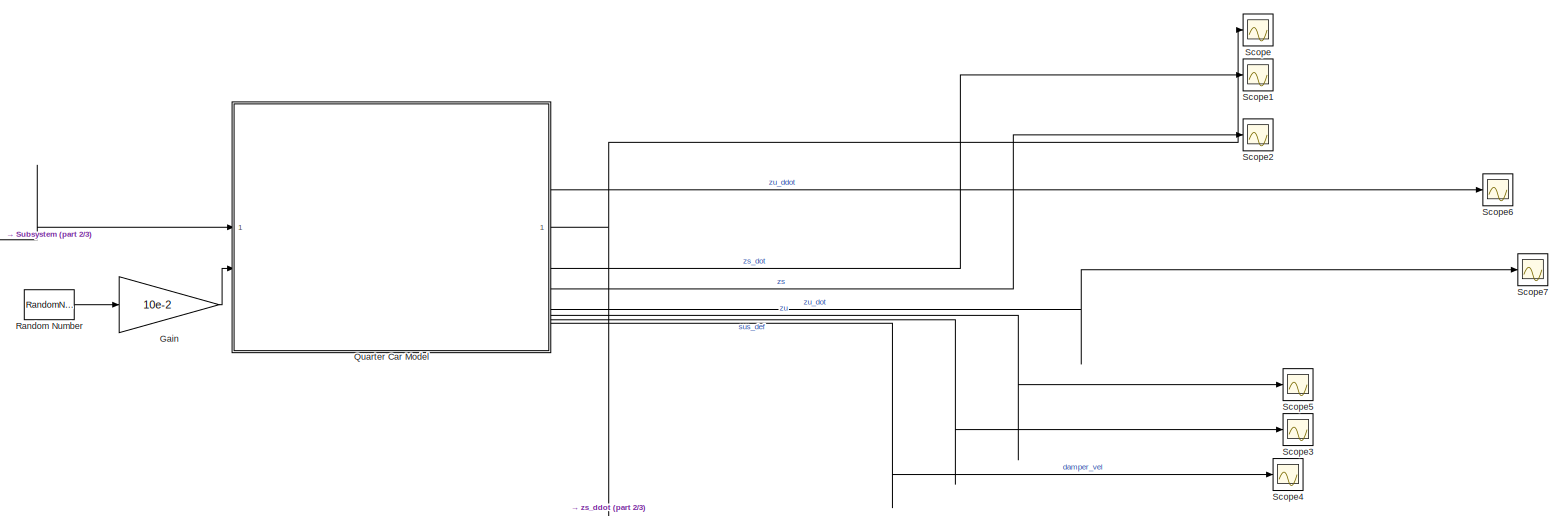
[diagram: root canvas - part 1/3, right side, full height]
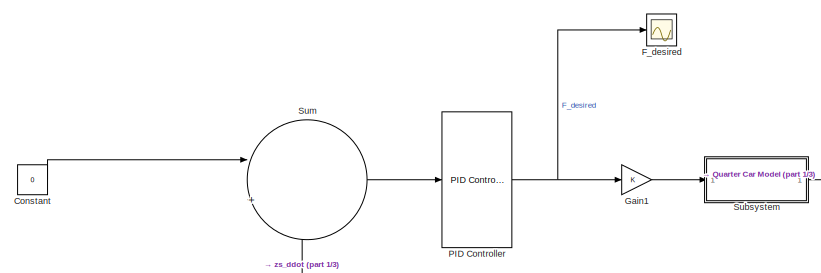
[diagram: root canvas - part 2/3, middle left region]
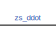
[diagram: root canvas - part 3/3, bottom center region]
MODEL slx_382a6aabd323
KIND model
CONFIG AbsTol = auto
CONFIG EnableMultiTasking = off
CONFIG FixedStep = auto
CONFIG MaxStep = auto
CONFIG MinStep = auto
CONFIG RelTol = 1e-3
CONFIG SampleTimeConstraint = Unconstrained
CONFIG SolverName = VariableStepAuto
CONFIG StartTime = 0.0
CONFIG StopTime = 1
BLOCK [Constant] Constant
  Value = 0
BLOCK [Scope] F_desired
  Floating = off
  NumInputPorts = 1
  ScopeSpecificationString = Simulink.scopes.TimeScopeBlockCfg('CurrentConfiguration', extmgr.ConfigurationSet(extmgr.Configuration('Core','General UI',true),extmgr.Configuration('Core','Source UI',true),extmgr.Configuration('Sources','WiredSimulink',true,'DataLoggingVariableName','ScopeData3'),extmgr.Configuration('Visuals','Time Domain',true,'SerializedDisplays',{struct('MinYLimReal','-10175.29855','MaxYLimReal','10168.7855...<+1455ch>
BLOCK [Gain] Gain
  Gain = 10e-2
BLOCK [Gain] Gain1
BLOCK [Reference] PID Controller  REF=slpidlib/PID Controller
  LibrarySourceBlock = simulink/Continuous/PID Controller
  SourceBlock = slpidlib/PID Controller
  SourceType = PID 1dof
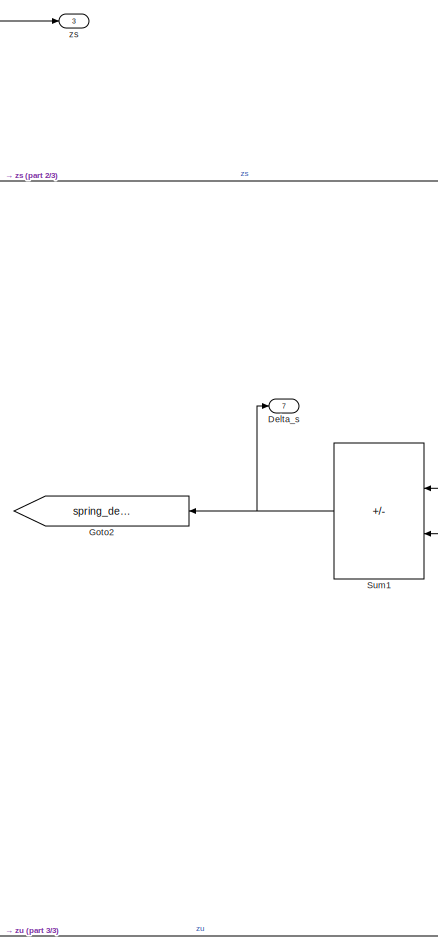
[diagram: Quarter Car Model - part 1/3, middle right region]
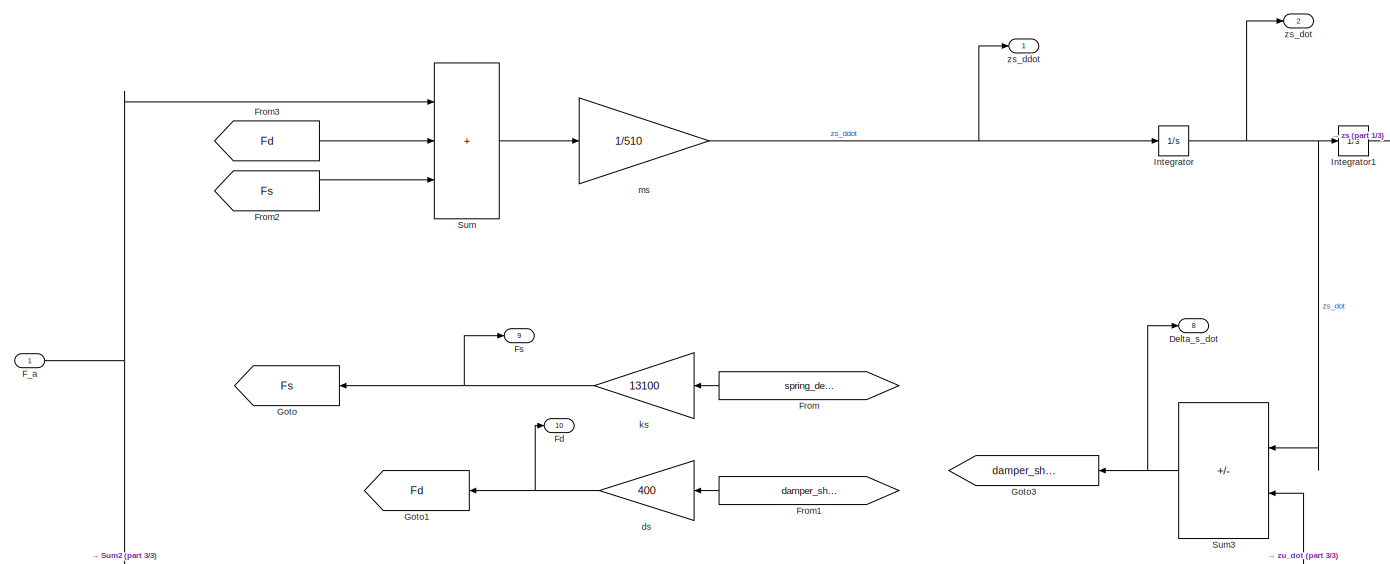
[diagram: Quarter Car Model - part 2/3, top center region]
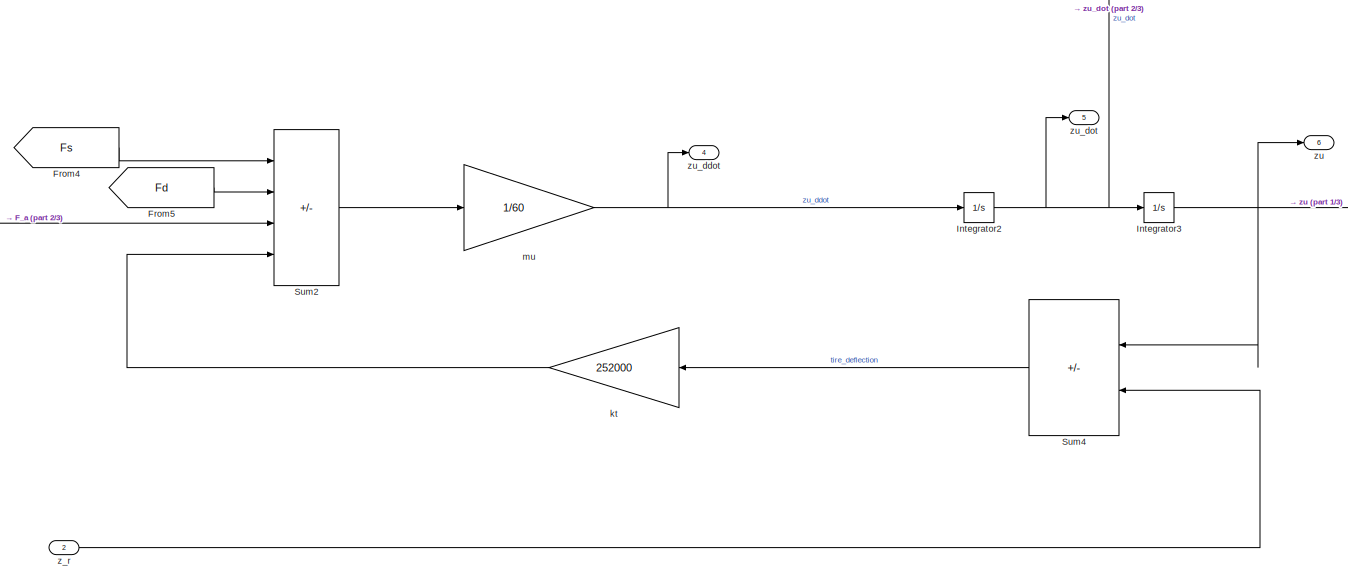
[diagram: Quarter Car Model - part 3/3, bottom center region]
BLOCK [SubSystem] Quarter Car Model
BLOCK [Outport] Quarter Car Model/Delta_s
  Port = 7
BLOCK [Outport] Quarter Car Model/Delta_s_dot
  Port = 8
BLOCK [Inport] Quarter Car Model/F_a
BLOCK [Outport] Quarter Car Model/Fd
  Port = 10
BLOCK [From] Quarter Car Model/From
  GotoTag = spring_deflection
  NameLocation = top
BLOCK [From] Quarter Car Model/From1
  GotoTag = damper_shaft_velocity
  NameLocation = top
BLOCK [From] Quarter Car Model/From2
  GotoTag = Fs
BLOCK [From] Quarter Car Model/From3
  GotoTag = Fd
  NameLocation = top
BLOCK [From] Quarter Car Model/From4
  GotoTag = Fs
BLOCK [From] Quarter Car Model/From5
  GotoTag = Fd
  NameLocation = top
BLOCK [Outport] Quarter Car Model/Fs
  Port = 9
BLOCK [Goto] Quarter Car Model/Goto
  GotoTag = Fs
  NameLocation = top
BLOCK [Goto] Quarter Car Model/Goto1
  GotoTag = Fd
  NameLocation = top
BLOCK [Goto] Quarter Car Model/Goto2
  GotoTag = spring_deflection
  NameLocation = top
BLOCK [Goto] Quarter Car Model/Goto3
  GotoTag = damper_shaft_velocity
  NameLocation = top
BLOCK [Integrator] Quarter Car Model/Integrator
BLOCK [Integrator] Quarter Car Model/Integrator1
BLOCK [Integrator] Quarter Car Model/Integrator2
BLOCK [Integrator] Quarter Car Model/Integrator3
BLOCK [Sum] Quarter Car Model/Sum
  IconShape = rectangular
  Inputs = +++
BLOCK [Sum] Quarter Car Model/Sum1
  IconShape = rectangular
  Inputs = |-+
  NameLocation = top
BLOCK [Sum] Quarter Car Model/Sum2
  IconShape = rectangular
  Inputs = ---+
BLOCK [Sum] Quarter Car Model/Sum3
  IconShape = rectangular
  Inputs = |-+
  NameLocation = top
BLOCK [Sum] Quarter Car Model/Sum4
  IconShape = rectangular
  Inputs = |-+
  NameLocation = top
BLOCK [Gain] Quarter Car Model/ds
  Gain = 400
  NameLocation = top
BLOCK [Gain] Quarter Car Model/ks
  Gain = 13100
  NameLocation = top
BLOCK [Gain] Quarter Car Model/kt
  Gain = 252000
  NameLocation = top
BLOCK [Gain] Quarter Car Model/ms
  Gain = 1/510
BLOCK [Gain] Quarter Car Model/mu
  Gain = 1/60
BLOCK [Inport] Quarter Car Model/z_r
  Port = 2
BLOCK [Outport] Quarter Car Model/zs
  Port = 3
BLOCK [Outport] Quarter Car Model/zs_ddot
BLOCK [Outport] Quarter Car Model/zs_dot
  Port = 2
BLOCK [Outport] Quarter Car Model/zu
  Port = 6
BLOCK [Outport] Quarter Car Model/zu_ddot
  Port = 4
BLOCK [Outport] Quarter Car Model/zu_dot
  Port = 5
BLOCK [RandomNumber] Random Number
  SampleTime = 0.01
BLOCK [Scope] Scope
  Floating = off
  NumInputPorts = 1
  ScopeSpecificationString = Simulink.scopes.TimeScopeBlockCfg('CurrentConfiguration', extmgr.ConfigurationSet(extmgr.Configuration('Core','General UI',true),extmgr.Configuration('Core','Source UI',true),extmgr.Configuration('Sources','WiredSimulink',true),extmgr.Configuration('Visuals','Time Domain',true,'SerializedDisplays',{struct('MinYLimReal','-0.43528','MaxYLimReal','0.44356','YLabelReal','','MinYLimMag','0.00000','MaxY...<+1385ch>
BLOCK [Scope] Scope1
  Floating = off
  NumInputPorts = 1
  ScopeSpecificationString = Simulink.scopes.TimeScopeBlockCfg('CurrentConfiguration', extmgr.ConfigurationSet(extmgr.Configuration('Core','General UI',true),extmgr.Configuration('Core','Source UI',true),extmgr.Configuration('Sources','WiredSimulink',true,'DataLoggingVariableName','ScopeData1'),extmgr.Configuration('Visuals','Time Domain',true,'SerializedDisplays',{struct('MinYLimReal','-0.0049','MaxYLimReal','0.01393','YLabe...<+1420ch>
BLOCK [Scope] Scope2
  Floating = off
  NumInputPorts = 1
  ScopeSpecificationString = Simulink.scopes.TimeScopeBlockCfg('CurrentConfiguration', extmgr.ConfigurationSet(extmgr.Configuration('Core','General UI',true),extmgr.Configuration('Core','Source UI',true),extmgr.Configuration('Sources','WiredSimulink',true,'DataLoggingVariableName','ScopeData2'),extmgr.Configuration('Visuals','Time Domain',true,'SerializedDisplays',{struct('MinYLimReal','-0.0006','MaxYLimReal','0.00537','YLabe...<+1359ch>
BLOCK [Scope] Scope3
  Floating = off
  NumInputPorts = 1
  ScopeSpecificationString = Simulink.scopes.TimeScopeBlockCfg('CurrentConfiguration', extmgr.ConfigurationSet(extmgr.Configuration('Core','General UI',true),extmgr.Configuration('Core','Source UI',true),extmgr.Configuration('Sources','WiredSimulink',true,'DataLoggingVariableName','ScopeData4'),extmgr.Configuration('Visuals','Time Domain',true,'SerializedDisplays',{struct('MinYLimReal','-0.00107','MaxYLimReal','0.00123','YLab...<+1379ch>
BLOCK [Scope] Scope4
  Floating = off
  NumInputPorts = 1
  ScopeSpecificationString = Simulink.scopes.TimeScopeBlockCfg('CurrentConfiguration', extmgr.ConfigurationSet(extmgr.Configuration('Core','General UI',true),extmgr.Configuration('Core','Source UI',true),extmgr.Configuration('Sources','WiredSimulink',true,'DataLoggingVariableName','ScopeData5'),extmgr.Configuration('Visuals','Time Domain',true,'SerializedDisplays',{struct('MinYLimReal','-0.00107','MaxYLimReal','0.00123','YLab...<+1379ch>
BLOCK [Scope] Scope5
  Floating = off
  NumInputPorts = 1
  ScopeSpecificationString = Simulink.scopes.TimeScopeBlockCfg('CurrentConfiguration', extmgr.ConfigurationSet(extmgr.Configuration('Core','General UI',true),extmgr.Configuration('Core','Source UI',true),extmgr.Configuration('Sources','WiredSimulink',true,'DataLoggingVariableName','ScopeData6'),extmgr.Configuration('Visuals','Time Domain',true,'SerializedDisplays',{struct('MinYLimReal','-0.00107','MaxYLimReal','0.00123','YLab...<+1379ch>
BLOCK [Scope] Scope6
  Floating = off
  NumInputPorts = 1
  ScopeSpecificationString = Simulink.scopes.TimeScopeBlockCfg('CurrentConfiguration', extmgr.ConfigurationSet(extmgr.Configuration('Core','General UI',true),extmgr.Configuration('Core','Source UI',true),extmgr.Configuration('Sources','WiredSimulink',true,'DataLoggingVariableName','ScopeData7'),extmgr.Configuration('Visuals','Time Domain',true,'SerializedDisplays',{struct('MinYLimReal','-0.00107','MaxYLimReal','0.00123','YLab...<+1379ch>
BLOCK [Scope] Scope7
  Floating = off
  NumInputPorts = 1
  ScopeSpecificationString = Simulink.scopes.TimeScopeBlockCfg('CurrentConfiguration', extmgr.ConfigurationSet(extmgr.Configuration('Core','General UI',true),extmgr.Configuration('Core','Source UI',true),extmgr.Configuration('Sources','WiredSimulink',true,'DataLoggingVariableName','ScopeData8'),extmgr.Configuration('Visuals','Time Domain',true,'SerializedDisplays',{struct('MinYLimReal','-0.00107','MaxYLimReal','0.00123','YLab...<+1379ch>
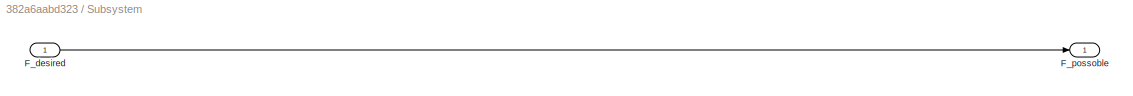
BLOCK [SubSystem] Subsystem
BLOCK [Inport] Subsystem/F_desired
BLOCK [Outport] Subsystem/F_possoble
BLOCK [Sum] Sum
  Inputs = |+-
LINE Constant:1 -> Sum:1
LINE Gain1:1 -> Subsystem:1
LINE Gain:1 -> Quarter Car Model:2
NET PID Controller:1 -> F_desired:1, Gain1:1
NET Quarter Car Model/F_a:1 -> Quarter Car Model/Sum2:3, Quarter Car Model/Sum:1
LINE Quarter Car Model/From1:1 -> Quarter Car Model/ds:1
LINE Quarter Car Model/From2:1 -> Quarter Car Model/Sum:3
LINE Quarter Car Model/From3:1 -> Quarter Car Model/Sum:2
LINE Quarter Car Model/From4:1 -> Quarter Car Model/Sum2:1
LINE Quarter Car Model/From5:1 -> Quarter Car Model/Sum2:2
LINE Quarter Car Model/From:1 -> Quarter Car Model/ks:1
NET Quarter Car Model/Integrator1:1 -> Quarter Car Model/Sum1:1, Quarter Car Model/zs:1
NET Quarter Car Model/Integrator2:1 -> Quarter Car Model/Integrator3:1, Quarter Car Model/Sum3:2, Quarter Car Model/zu_dot:1
NET Quarter Car Model/Integrator3:1 -> Quarter Car Model/Sum1:2, Quarter Car Model/Sum4:1, Quarter Car Model/zu:1
NET Quarter Car Model/Integrator:1 -> Quarter Car Model/Integrator1:1, Quarter Car Model/Sum3:1, Quarter Car Model/zs_dot:1
NET Quarter Car Model/Sum1:1 -> Quarter Car Model/Delta_s:1, Quarter Car Model/Goto2:1
LINE Quarter Car Model/Sum2:1 -> Quarter Car Model/mu:1
NET Quarter Car Model/Sum3:1 -> Quarter Car Model/Delta_s_dot:1, Quarter Car Model/Goto3:1
LINE Quarter Car Model/Sum4:1 -> Quarter Car Model/kt:1
LINE Quarter Car Model/Sum:1 -> Quarter Car Model/ms:1
NET Quarter Car Model/ds:1 -> Quarter Car Model/Fd:1, Quarter Car Model/Goto1:1
NET Quarter Car Model/ks:1 -> Quarter Car Model/Fs:1, Quarter Car Model/Goto:1
LINE Quarter Car Model/kt:1 -> Quarter Car Model/Sum2:4
NET Quarter Car Model/ms:1 -> Quarter Car Model/Integrator:1, Quarter Car Model/zs_ddot:1
NET Quarter Car Model/mu:1 -> Quarter Car Model/Integrator2:1, Quarter Car Model/zu_ddot:1
LINE Quarter Car Model/z_r:1 -> Quarter Car Model/Sum4:2
NET Quarter Car Model:1 -> Scope:1, Sum:2
LINE Quarter Car Model:2 -> Scope1:1
LINE Quarter Car Model:3 -> Scope2:1
LINE Quarter Car Model:4 -> Scope6:1
LINE Quarter Car Model:5 -> Scope7:1
LINE Quarter Car Model:6 -> Scope5:1
LINE Quarter Car Model:7 -> Scope3:1
LINE Quarter Car Model:8 -> Scope4:1
LINE Random Number:1 -> Gain:1
LINE Subsystem/F_desired:1 -> Subsystem/F_possoble:1
LINE Subsystem:1 -> Quarter Car Model:1
LINE Sum:1 -> PID Controller:1
note: NET lines group one-source signal fan-out (src -> all destinations, sorted); 1:1 wires keep LINE
